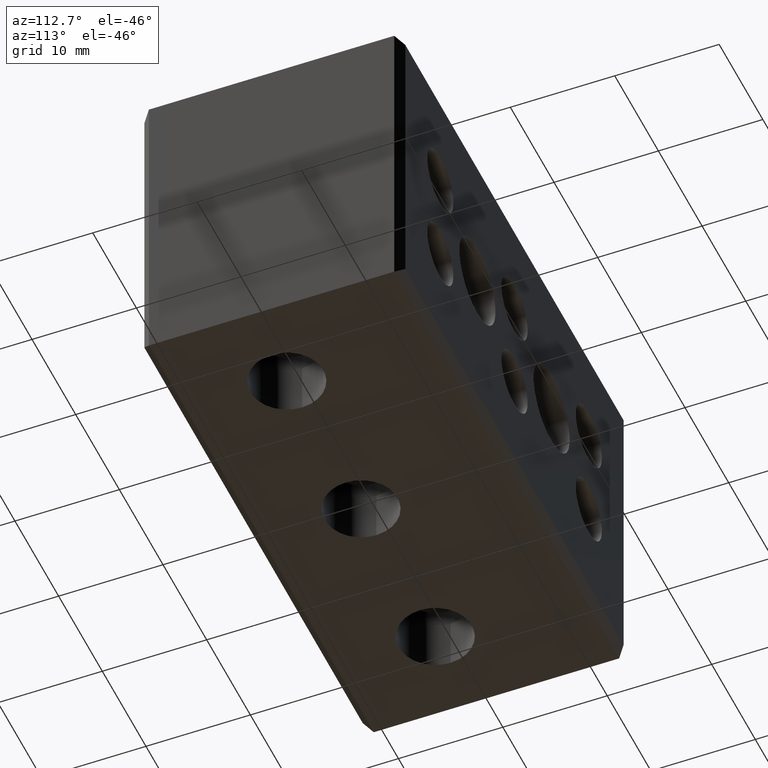
[diagram: clean part render]
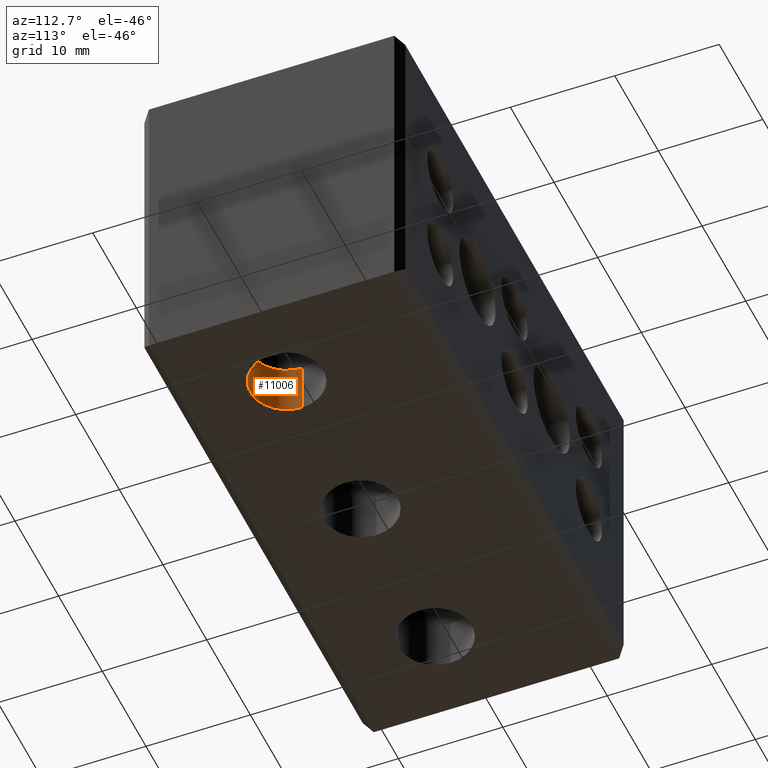
[diagram: same view with one face highlighted and labeled with its STEP entity id]
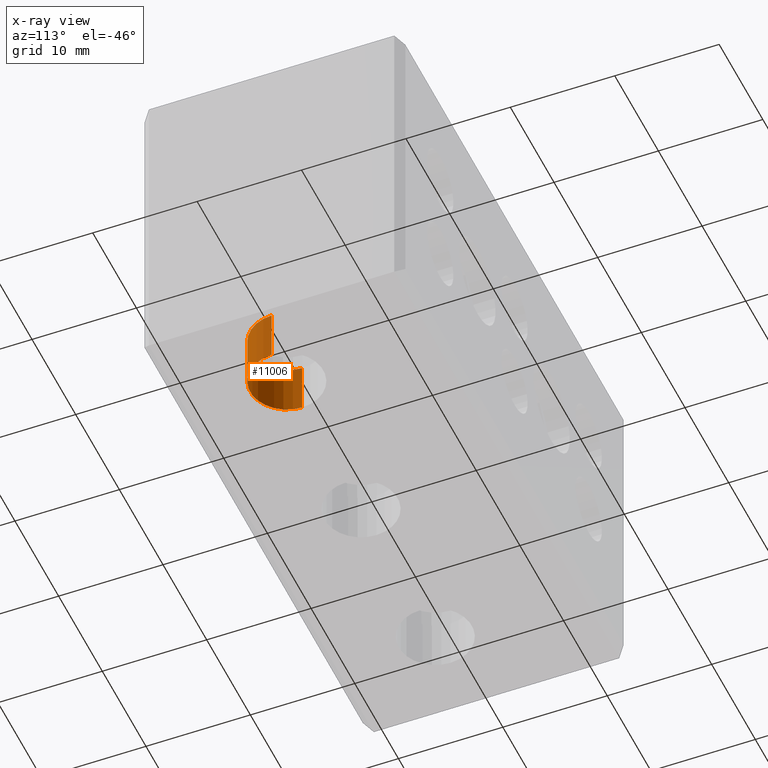
[diagram: x-ray of the same camera — body ghosted, the highlighted face saturated]
A machine part, auxiliary view. The second image highlights one B-rep face of the part: STEP entity #11006.
The next image is the same camera in x-ray: the body ghosted, the highlighted face saturated — about 0% of this face is hidden behind the body in this view.
In plain terms, the highlighted cylindrical surface (partial cylindrical patch) has radius 3.5 mm, axis along (0, 0, -1).
Its self-contained STEP definition (entity closure, byte-faithful):
#318 = ORIENTED_EDGE ( 'NONE', *, *, #8938, .F. ) ;
#334 = ORIENTED_EDGE ( 'NONE', *, *, #8961, .F. ) ;
#338 = ORIENTED_EDGE ( 'NONE', *, *, #8935, .T. ) ;
#345 = ORIENTED_EDGE ( 'NONE', *, *, #8862, .F. ) ;
#355 = VERTEX_POINT ( 'NONE', #8019 ) ;
#365 = VERTEX_POINT ( 'NONE', #8023 ) ;
#378 = VERTEX_POINT ( 'NONE', #8097 ) ;
#407 = VERTEX_POINT ( 'NONE', #8096 ) ;
#2108 = CARTESIAN_POINT ( 'NONE',  ( 395.7158352908286400, 338.4299441412572400, 4.999999999999979600 ) ) ;
#2111 = FACE_OUTER_BOUND ( 'NONE', #6800, .T. ) ;
#2129 = CYLINDRICAL_SURFACE ( 'NONE', #5237, 3.500000000000003100 ) ;
#2144 = DIRECTION ( 'NONE',  ( -1.000000000000000000, 0.0000000000000000000, 0.0000000000000000000 ) ) ;
#2145 = DIRECTION ( 'NONE',  ( 0.0000000000000000000, 0.0000000000000000000, -1.000000000000000000 ) ) ;
#5237 = AXIS2_PLACEMENT_3D ( 'NONE', #2108, #2145, #2144 ) ;
#6800 = EDGE_LOOP ( 'NONE', ( #318, #338, #334, #345 ) ) ;
#8019 = CARTESIAN_POINT ( 'NONE',  ( 392.2158352908286400, 338.4299441412572400, -1.994931997373328200E-014 ) ) ;
#8023 = CARTESIAN_POINT ( 'NONE',  ( 399.2158352908286400, 338.4299441412572400, -1.994931997373328200E-014 ) ) ;
#8096 = CARTESIAN_POINT ( 'NONE',  ( 392.2158352908286400, 338.4299441412572400, 4.999999999999979600 ) ) ;
#8097 = CARTESIAN_POINT ( 'NONE',  ( 399.2158352908286400, 338.4299441412572400, 4.999999999999979600 ) ) ;
#8862 = EDGE_CURVE ( 'NONE', #407, #355, #9158, .T. ) ;
#8935 = EDGE_CURVE ( 'NONE', #378, #365, #9444, .T. ) ;
#8938 = EDGE_CURVE ( 'NONE', #378, #407, #12152, .T. ) ;
#8961 = EDGE_CURVE ( 'NONE', #355, #365, #12162, .T. ) ;
#9154 = DIRECTION ( 'NONE',  ( 0.0000000000000000000, 0.0000000000000000000, -1.000000000000000000 ) ) ;
#9158 = LINE ( 'NONE', #9163, #12787 ) ;
#9163 = CARTESIAN_POINT ( 'NONE',  ( 392.2158352908286400, 338.4299441412572400, 4.999999999999979600 ) ) ;
#9439 = DIRECTION ( 'NONE',  ( 0.0000000000000000000, 0.0000000000000000000, -1.000000000000000000 ) ) ;
#9444 = LINE ( 'NONE', #9446, #12144 ) ;
#9446 = CARTESIAN_POINT ( 'NONE',  ( 399.2158352908286400, 338.4299441412572400, 4.999999999999979600 ) ) ;
#9495 = DIRECTION ( 'NONE',  ( 0.0000000000000000000, 0.0000000000000000000, -1.000000000000000000 ) ) ;
#9508 = DIRECTION ( 'NONE',  ( -1.000000000000000000, 0.0000000000000000000, 0.0000000000000000000 ) ) ;
#9519 = CARTESIAN_POINT ( 'NONE',  ( 395.7158352908286400, 338.4299441412572400, 4.999999999999979600 ) ) ;
#9598 = CARTESIAN_POINT ( 'NONE',  ( 395.7158352908286400, 338.4299441412572400, -1.994931997373328200E-014 ) ) ;
#9623 = DIRECTION ( 'NONE',  ( -0.0000000000000000000, -0.0000000000000000000, 1.000000000000000000 ) ) ;
#9624 = DIRECTION ( 'NONE',  ( -1.000000000000000000, 0.0000000000000000000, 0.0000000000000000000 ) ) ;
#11006 = ADVANCED_FACE ( 'NONE', ( #2111 ), #2129, .F. ) ;
#12144 = VECTOR ( 'NONE', #9439, 1000.000000000000000 ) ;
#12146 = AXIS2_PLACEMENT_3D ( 'NONE', #9519, #9495, #9508 ) ;
#12152 = CIRCLE ( 'NONE', #12146, 3.500000000000003100 ) ;
#12162 = CIRCLE ( 'NONE', #12174, 3.500000000000003100 ) ;
#12174 = AXIS2_PLACEMENT_3D ( 'NONE', #9598, #9623, #9624 ) ;
#12787 = VECTOR ( 'NONE', #9154, 1000.000000000000000 ) ;